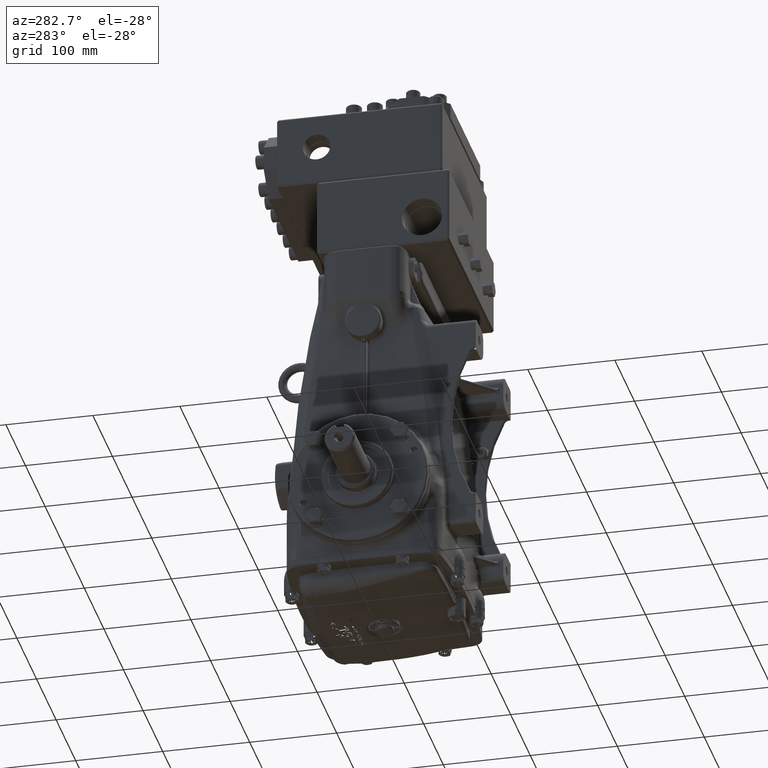
[diagram: clean part render]
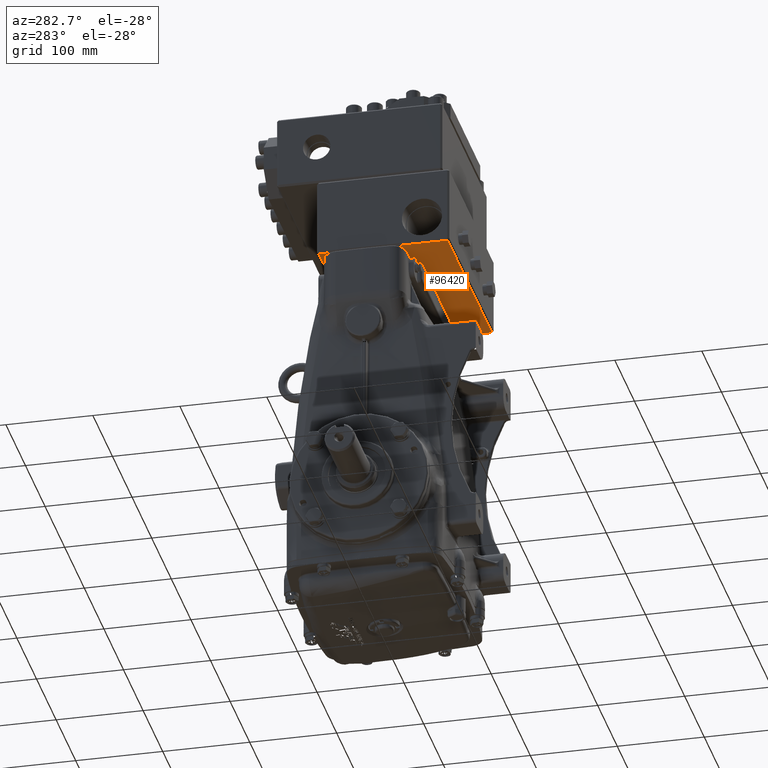
[diagram: same view with one face highlighted and labeled with its STEP entity id]
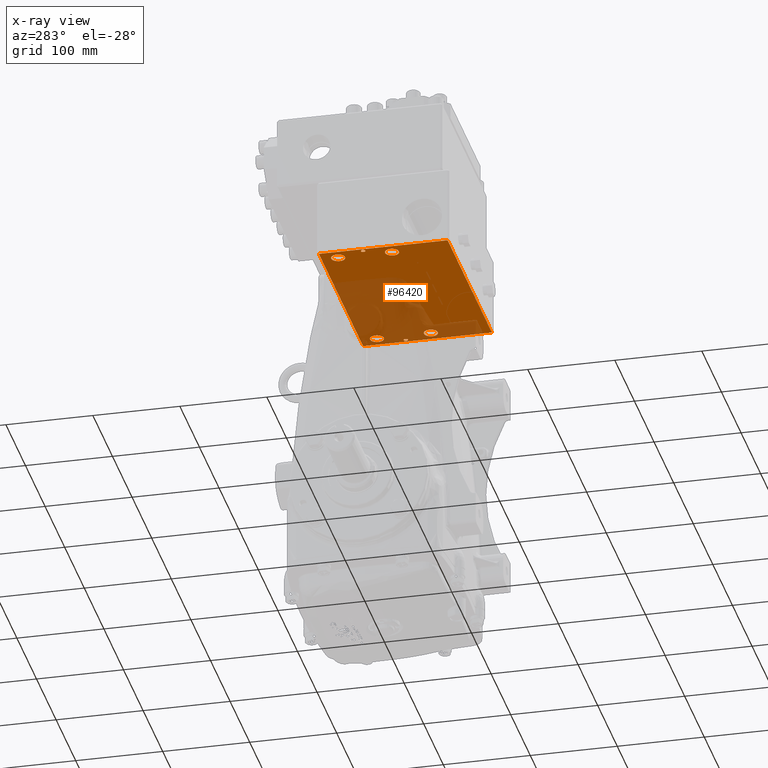
[diagram: x-ray of the same camera — body ghosted, the highlighted face saturated]
A machine part, auxiliary view. The second image highlights one B-rep face of the part: STEP entity #96420.
The next image is the same camera in x-ray: the body ghosted, the highlighted face saturated — about 44% of this face is hidden behind the body in this view.
In plain terms, the highlighted planar face has unit normal (0, 0, -1).
Its self-contained STEP definition (entity closure, byte-faithful):
#193 = FACE_BOUND ( 'NONE', #57853, .T. ) ;
#2412 = CIRCLE ( 'NONE', #69144, 0.09842519685039324839 ) ;
#3938 = ORIENTED_EDGE ( 'NONE', *, *, #99734, .T. ) ;
#4408 = VERTEX_POINT ( 'NONE', #15477 ) ;
#5178 = DIRECTION ( 'NONE',  ( -0.0000000000000000000, -0.0000000000000000000, 1.000000000000000000 ) ) ;
#5707 = EDGE_CURVE ( 'NONE', #20939, #90296, #68670, .T. ) ;
#6497 = CARTESIAN_POINT ( 'NONE',  ( -4.212598425196850016, 1.220472440944881720, 11.77165354330708702 ) ) ;
#7954 = ORIENTED_EDGE ( 'NONE', *, *, #117252, .T. ) ;
#8045 = DIRECTION ( 'NONE',  ( 0.0000000000000000000, 0.0000000000000000000, -1.000000000000000000 ) ) ;
#9396 = AXIS2_PLACEMENT_3D ( 'NONE', #86970, #5178, #41622 ) ;
#11223 = EDGE_CURVE ( 'NONE', #30371, #83054, #113651, .T. ) ;
#11293 = CARTESIAN_POINT ( 'NONE',  ( 4.527559055118110187, 1.968503937007874738, 11.77165354330708702 ) ) ;
#11932 = CIRCLE ( 'NONE', #78678, 0.3149606299212595606 ) ;
#12545 = DIRECTION ( 'NONE',  ( -1.000000000000000000, 0.0000000000000000000, 0.0000000000000000000 ) ) ;
#14517 = DIRECTION ( 'NONE',  ( -1.000000000000000000, 0.0000000000000000000, 0.0000000000000000000 ) ) ;
#14533 = VERTEX_POINT ( 'NONE', #29857 ) ;
#15477 = CARTESIAN_POINT ( 'NONE',  ( 4.448818897637796255, 1.968503937007874738, 11.77165354330708702 ) ) ;
#15550 = CARTESIAN_POINT ( 'NONE',  ( 4.389763779527559251, -1.245387894553848713E-16, 11.77165354330708702 ) ) ;
#16974 = DIRECTION ( 'NONE',  ( -1.000000000000000000, 0.0000000000000000000, 0.0000000000000000000 ) ) ;
#17283 = DIRECTION ( 'NONE',  ( 0.0000000000000000000, 0.0000000000000000000, -1.000000000000000000 ) ) ;
#17502 = CARTESIAN_POINT ( 'NONE',  ( -4.389763779527558363, -1.365923996832131856E-16, 11.77165354330708702 ) ) ;
#18318 = CARTESIAN_POINT ( 'NONE',  ( 4.448818897637796255, -3.858267716535433323, 11.77165354330708702 ) ) ;
#18684 = DIRECTION ( 'NONE',  ( 0.0000000000000000000, 0.0000000000000000000, -1.000000000000000000 ) ) ;
#19484 = VERTEX_POINT ( 'NONE', #98370 ) ;
#19546 = CARTESIAN_POINT ( 'NONE',  ( -4.448818897637795367, 2.047244094488188448, 11.77165354330708702 ) ) ;
#19744 = EDGE_LOOP ( 'NONE', ( #25580, #97190 ) ) ;
#19787 = DIRECTION ( 'NONE',  ( 0.0000000000000000000, 0.0000000000000000000, -1.000000000000000000 ) ) ;
#20118 = EDGE_CURVE ( 'NONE', #93397, #33677, #99318, .T. ) ;
#20226 = CIRCLE ( 'NONE', #86927, 0.09842519685039378963 ) ;
#20939 = VERTEX_POINT ( 'NONE', #18318 ) ;
#22230 = CARTESIAN_POINT ( 'NONE',  ( 4.291338582677165725, -1.365923996832131856E-16, 11.77165354330708702 ) ) ;
#22616 = CARTESIAN_POINT ( 'NONE',  ( -3.897637795275590733, -1.220472440944881942, 11.77165354330708702 ) ) ;
#23316 = DIRECTION ( 'NONE',  ( -1.000000000000000000, 0.0000000000000000000, 0.0000000000000000000 ) ) ;
#24682 = ORIENTED_EDGE ( 'NONE', *, *, #20118, .T. ) ;
#25580 = ORIENTED_EDGE ( 'NONE', *, *, #74831, .T. ) ;
#27659 = FACE_BOUND ( 'NONE', #116652, .T. ) ;
#27835 = AXIS2_PLACEMENT_3D ( 'NONE', #114151, #32422, #68828 ) ;
#27987 = EDGE_LOOP ( 'NONE', ( #41446, #104103, #44978, #7954 ) ) ;
#29857 = CARTESIAN_POINT ( 'NONE',  ( -4.448818897637795367, 1.968503937007874516, 11.77165354330708702 ) ) ;
#30371 = VERTEX_POINT ( 'NONE', #103191 ) ;
#30697 = ORIENTED_EDGE ( 'NONE', *, *, #111242, .F. ) ;
#30769 = EDGE_LOOP ( 'NONE', ( #98673, #24682 ) ) ;
#30834 = ORIENTED_EDGE ( 'NONE', *, *, #11223, .T. ) ;
#32422 = DIRECTION ( 'NONE',  ( -0.0000000000000000000, -0.0000000000000000000, 1.000000000000000000 ) ) ;
#33677 = VERTEX_POINT ( 'NONE', #6497 ) ;
#33748 = DIRECTION ( 'NONE',  ( -0.0000000000000000000, -0.0000000000000000000, 1.000000000000000000 ) ) ;
#33881 = CIRCLE ( 'NONE', #100591, 0.3149606299212595606 ) ;
#34333 = CARTESIAN_POINT ( 'NONE',  ( 3.582677165354331450, -1.220472440944881942, 11.77165354330708702 ) ) ;
#35305 = LINE ( 'NONE', #71701, #78044 ) ;
#35938 = EDGE_CURVE ( 'NONE', #33677, #93397, #33881, .T. ) ;
#36641 = FACE_BOUND ( 'NONE', #19744, .T. ) ;
#40875 = VERTEX_POINT ( 'NONE', #115481 ) ;
#41446 = ORIENTED_EDGE ( 'NONE', *, *, #117984, .T. ) ;
#41622 = DIRECTION ( 'NONE',  ( -1.000000000000000000, 0.0000000000000000000, 0.0000000000000000000 ) ) ;
#43320 = CARTESIAN_POINT ( 'NONE',  ( 3.897637795275590733, -1.220472440944881942, 11.77165354330708702 ) ) ;
#44156 = AXIS2_PLACEMENT_3D ( 'NONE', #22616, #59035, #95414 ) ;
#44487 = DIRECTION ( 'NONE',  ( -1.000000000000000000, 0.0000000000000000000, 0.0000000000000000000 ) ) ;
#44978 = ORIENTED_EDGE ( 'NONE', *, *, #90915, .T. ) ;
#45121 = CIRCLE ( 'NONE', #111796, 0.09842519685039324839 ) ;
#45559 = FACE_OUTER_BOUND ( 'NONE', #27987, .T. ) ;
#45924 = EDGE_LOOP ( 'NONE', ( #3938, #30834 ) ) ;
#45996 = CARTESIAN_POINT ( 'NONE',  ( -3.582677165354331450, 1.220472440944881720, 11.77165354330708702 ) ) ;
#47724 = DIRECTION ( 'NONE',  ( 1.000000000000000000, 3.016910393003143228E-17, 0.0000000000000000000 ) ) ;
#47830 = AXIS2_PLACEMENT_3D ( 'NONE', #115479, #33748, #70149 ) ;
#51569 = VECTOR ( 'NONE', #47724, 39.37007874015748143 ) ;
#52533 = VECTOR ( 'NONE', #55979, 39.37007874015748143 ) ;
#53723 = DIRECTION ( 'NONE',  ( -1.000000000000000000, 0.0000000000000000000, 0.0000000000000000000 ) ) ;
#53808 = CARTESIAN_POINT ( 'NONE',  ( -4.212598425196850016, -1.220472440944881942, 11.77165354330708702 ) ) ;
#55073 = ORIENTED_EDGE ( 'NONE', *, *, #78941, .T. ) ;
#55125 = DIRECTION ( 'NONE',  ( -1.000000000000000000, 0.0000000000000000000, -0.0000000000000000000 ) ) ;
#55922 = AXIS2_PLACEMENT_3D ( 'NONE', #43320, #79726, #116110 ) ;
#55945 = EDGE_CURVE ( 'NONE', #40875, #111988, #79308, .T. ) ;
#55979 = DIRECTION ( 'NONE',  ( -0.0000000000000000000, 1.000000000000000000, 0.0000000000000000000 ) ) ;
#56211 = DIRECTION ( 'NONE',  ( -1.000000000000000000, 0.0000000000000000000, 0.0000000000000000000 ) ) ;
#57853 = EDGE_LOOP ( 'NONE', ( #74146, #55073 ) ) ;
#57960 = CARTESIAN_POINT ( 'NONE',  ( 3.897637795275590733, -1.220472440944881942, 11.77165354330708702 ) ) ;
#58650 = DIRECTION ( 'NONE',  ( 0.0000000000000000000, 0.0000000000000000000, -1.000000000000000000 ) ) ;
#59035 = DIRECTION ( 'NONE',  ( -0.0000000000000000000, -0.0000000000000000000, 1.000000000000000000 ) ) ;
#59924 = CARTESIAN_POINT ( 'NONE',  ( -3.897637795275590733, 1.220472440944881720, 11.77165354330708702 ) ) ;
#60894 = CIRCLE ( 'NONE', #9396, 0.3149606299212595606 ) ;
#62247 = AXIS2_PLACEMENT_3D ( 'NONE', #62373, #98766, #16974 ) ;
#62373 = CARTESIAN_POINT ( 'NONE',  ( -3.897637795275590733, -1.220472440944881942, 11.77165354330708702 ) ) ;
#62663 = AXIS2_PLACEMENT_3D ( 'NONE', #22230, #58650, #95023 ) ;
#64073 = PLANE ( 'NONE',  #112269 ) ;
#68670 = LINE ( 'NONE', #105059, #78943 ) ;
#68828 = DIRECTION ( 'NONE',  ( -1.000000000000000000, 0.0000000000000000000, 0.0000000000000000000 ) ) ;
#69144 = AXIS2_PLACEMENT_3D ( 'NONE', #101558, #19787, #56211 ) ;
#70149 = DIRECTION ( 'NONE',  ( -1.000000000000000000, 0.0000000000000000000, 0.0000000000000000000 ) ) ;
#71701 = CARTESIAN_POINT ( 'NONE',  ( 4.448818897637796255, -3.937007874015748143, 11.77165354330708702 ) ) ;
#71967 = ORIENTED_EDGE ( 'NONE', *, *, #111987, .F. ) ;
#73034 = FACE_BOUND ( 'NONE', #45924, .T. ) ;
#73338 = CARTESIAN_POINT ( 'NONE',  ( -4.192913385826772199, -1.245387894553849453E-16, 11.77165354330708702 ) ) ;
#74146 = ORIENTED_EDGE ( 'NONE', *, *, #55945, .T. ) ;
#74831 = EDGE_CURVE ( 'NONE', #84735, #86061, #107347, .T. ) ;
#76494 = CARTESIAN_POINT ( 'NONE',  ( -4.448818897637795367, -3.858267716535433323, 11.77165354330708702 ) ) ;
#78044 = VECTOR ( 'NONE', #108079, 39.37007874015748143 ) ;
#78678 = AXIS2_PLACEMENT_3D ( 'NONE', #57960, #94337, #12545 ) ;
#78687 = VERTEX_POINT ( 'NONE', #73338 ) ;
#78941 = EDGE_CURVE ( 'NONE', #111988, #40875, #60894, .T. ) ;
#78943 = VECTOR ( 'NONE', #23316, 39.37007874015748143 ) ;
#79308 = CIRCLE ( 'NONE', #27835, 0.3149606299212595606 ) ;
#79726 = DIRECTION ( 'NONE',  ( -0.0000000000000000000, -0.0000000000000000000, 1.000000000000000000 ) ) ;
#80374 = CIRCLE ( 'NONE', #44156, 0.3149606299212595606 ) ;
#80900 = CARTESIAN_POINT ( 'NONE',  ( 4.212598425196850016, 1.220472440944881720, 11.77165354330708702 ) ) ;
#81981 = FACE_BOUND ( 'NONE', #30769, .T. ) ;
#83054 = VERTEX_POINT ( 'NONE', #53808 ) ;
#84735 = VERTEX_POINT ( 'NONE', #34333 ) ;
#85359 = EDGE_CURVE ( 'NONE', #100446, #78687, #2412, .T. ) ;
#85445 = EDGE_CURVE ( 'NONE', #86061, #84735, #11932, .T. ) ;
#86061 = VERTEX_POINT ( 'NONE', #100552 ) ;
#86927 = AXIS2_PLACEMENT_3D ( 'NONE', #99081, #17283, #53723 ) ;
#86970 = CARTESIAN_POINT ( 'NONE',  ( 3.897637795275590733, 1.220472440944881720, 11.77165354330708702 ) ) ;
#89281 = ORIENTED_EDGE ( 'NONE', *, *, #114608, .F. ) ;
#89832 = CARTESIAN_POINT ( 'NONE',  ( -4.291338582677165725, -1.365923996832131856E-16, 11.77165354330708702 ) ) ;
#90296 = VERTEX_POINT ( 'NONE', #76494 ) ;
#90915 = EDGE_CURVE ( 'NONE', #90296, #14533, #101326, .T. ) ;
#93093 = LINE ( 'NONE', #11293, #51569 ) ;
#93397 = VERTEX_POINT ( 'NONE', #45996 ) ;
#94337 = DIRECTION ( 'NONE',  ( -0.0000000000000000000, -0.0000000000000000000, 1.000000000000000000 ) ) ;
#95023 = DIRECTION ( 'NONE',  ( -1.000000000000000000, 0.0000000000000000000, 0.0000000000000000000 ) ) ;
#95414 = DIRECTION ( 'NONE',  ( -1.000000000000000000, 0.0000000000000000000, 0.0000000000000000000 ) ) ;
#96301 = DIRECTION ( 'NONE',  ( -0.0000000000000000000, -0.0000000000000000000, 1.000000000000000000 ) ) ;
#96420 = ADVANCED_FACE ( 'NONE', ( #45559, #81981, #193, #36641, #73034, #109404, #27659 ), #64073, .T. ) ;
#97190 = ORIENTED_EDGE ( 'NONE', *, *, #85445, .T. ) ;
#98370 = CARTESIAN_POINT ( 'NONE',  ( 4.192913385826771311, -1.365923996832131856E-16, 11.77165354330708702 ) ) ;
#98673 = ORIENTED_EDGE ( 'NONE', *, *, #35938, .T. ) ;
#98766 = DIRECTION ( 'NONE',  ( -0.0000000000000000000, -0.0000000000000000000, 1.000000000000000000 ) ) ;
#99081 = CARTESIAN_POINT ( 'NONE',  ( 4.291338582677165725, -1.365923996832131856E-16, 11.77165354330708702 ) ) ;
#99318 = CIRCLE ( 'NONE', #47830, 0.3149606299212595606 ) ;
#99734 = EDGE_CURVE ( 'NONE', #83054, #30371, #80374, .T. ) ;
#100446 = VERTEX_POINT ( 'NONE', #17502 ) ;
#100478 = CARTESIAN_POINT ( 'NONE',  ( -4.527559055118110187, -3.937007874015748143, 11.77165354330708702 ) ) ;
#100552 = CARTESIAN_POINT ( 'NONE',  ( 4.212598425196850016, -1.220472440944881942, 11.77165354330708702 ) ) ;
#100591 = AXIS2_PLACEMENT_3D ( 'NONE', #59924, #96301, #14517 ) ;
#101050 = EDGE_LOOP ( 'NONE', ( #114929, #71967 ) ) ;
#101326 = LINE ( 'NONE', #19546, #52533 ) ;
#101558 = CARTESIAN_POINT ( 'NONE',  ( -4.291338582677165725, -1.365923996832131856E-16, 11.77165354330708702 ) ) ;
#103191 = CARTESIAN_POINT ( 'NONE',  ( -3.582677165354331450, -1.220472440944881942, 11.77165354330708702 ) ) ;
#104103 = ORIENTED_EDGE ( 'NONE', *, *, #5707, .T. ) ;
#104451 = VERTEX_POINT ( 'NONE', #15550 ) ;
#105059 = CARTESIAN_POINT ( 'NONE',  ( -4.527559055118110187, -3.858267716535433323, 11.77165354330708702 ) ) ;
#107347 = CIRCLE ( 'NONE', #55922, 0.3149606299212595606 ) ;
#108079 = DIRECTION ( 'NONE',  ( 9.130123557772668334E-17, -1.000000000000000000, 0.0000000000000000000 ) ) ;
#109404 = FACE_BOUND ( 'NONE', #101050, .T. ) ;
#111242 = EDGE_CURVE ( 'NONE', #104451, #19484, #20226, .T. ) ;
#111796 = AXIS2_PLACEMENT_3D ( 'NONE', #89832, #8045, #44487 ) ;
#111987 = EDGE_CURVE ( 'NONE', #78687, #100446, #45121, .T. ) ;
#111988 = VERTEX_POINT ( 'NONE', #80900 ) ;
#112269 = AXIS2_PLACEMENT_3D ( 'NONE', #100478, #18684, #55125 ) ;
#113651 = CIRCLE ( 'NONE', #62247, 0.3149606299212595606 ) ;
#114065 = CIRCLE ( 'NONE', #62663, 0.09842519685039378963 ) ;
#114151 = CARTESIAN_POINT ( 'NONE',  ( 3.897637795275590733, 1.220472440944881720, 11.77165354330708702 ) ) ;
#114608 = EDGE_CURVE ( 'NONE', #19484, #104451, #114065, .T. ) ;
#114929 = ORIENTED_EDGE ( 'NONE', *, *, #85359, .F. ) ;
#115479 = CARTESIAN_POINT ( 'NONE',  ( -3.897637795275590733, 1.220472440944881720, 11.77165354330708702 ) ) ;
#115481 = CARTESIAN_POINT ( 'NONE',  ( 3.582677165354331450, 1.220472440944881720, 11.77165354330708702 ) ) ;
#116110 = DIRECTION ( 'NONE',  ( -1.000000000000000000, 0.0000000000000000000, 0.0000000000000000000 ) ) ;
#116652 = EDGE_LOOP ( 'NONE', ( #89281, #30697 ) ) ;
#117252 = EDGE_CURVE ( 'NONE', #14533, #4408, #93093, .T. ) ;
#117984 = EDGE_CURVE ( 'NONE', #4408, #20939, #35305, .T. ) ;